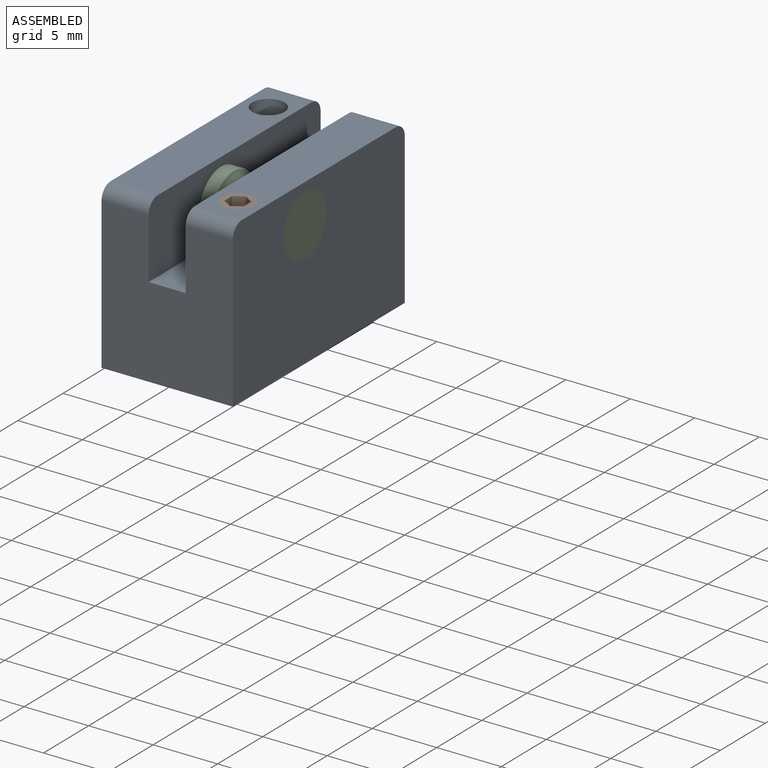
[diagram: assembled view]
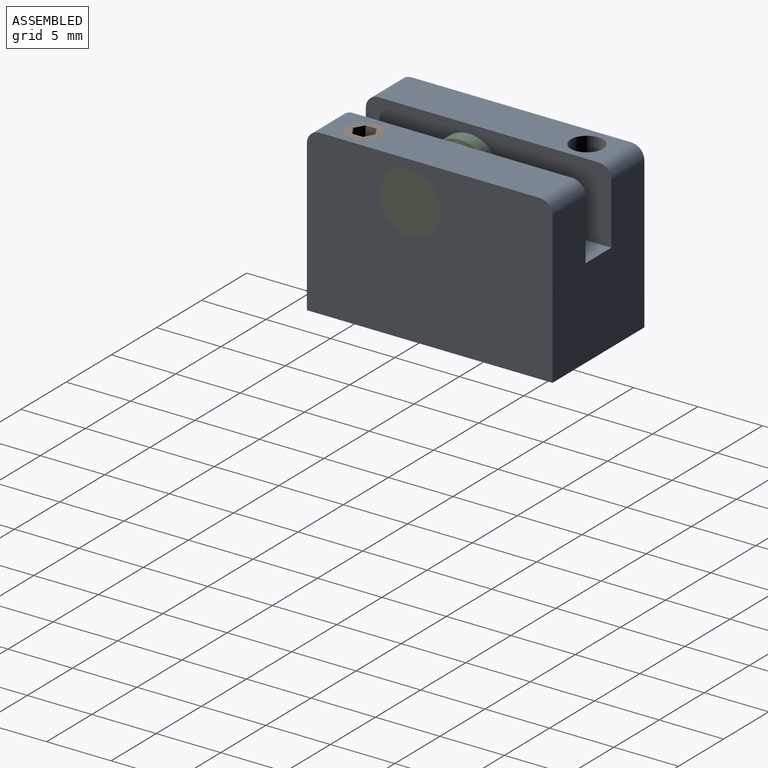
[diagram: assembled view, second angle]
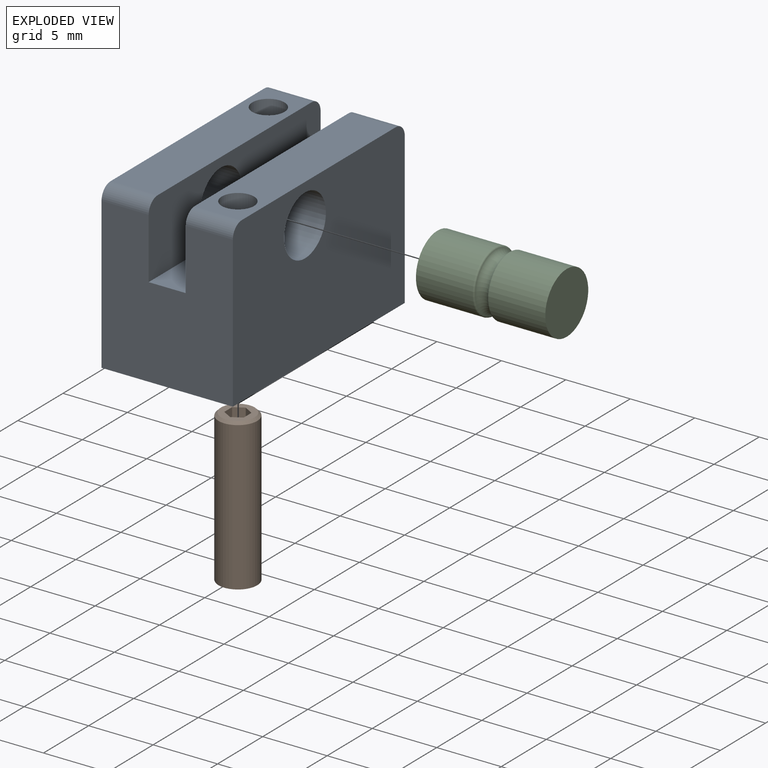
[diagram: exploded view]
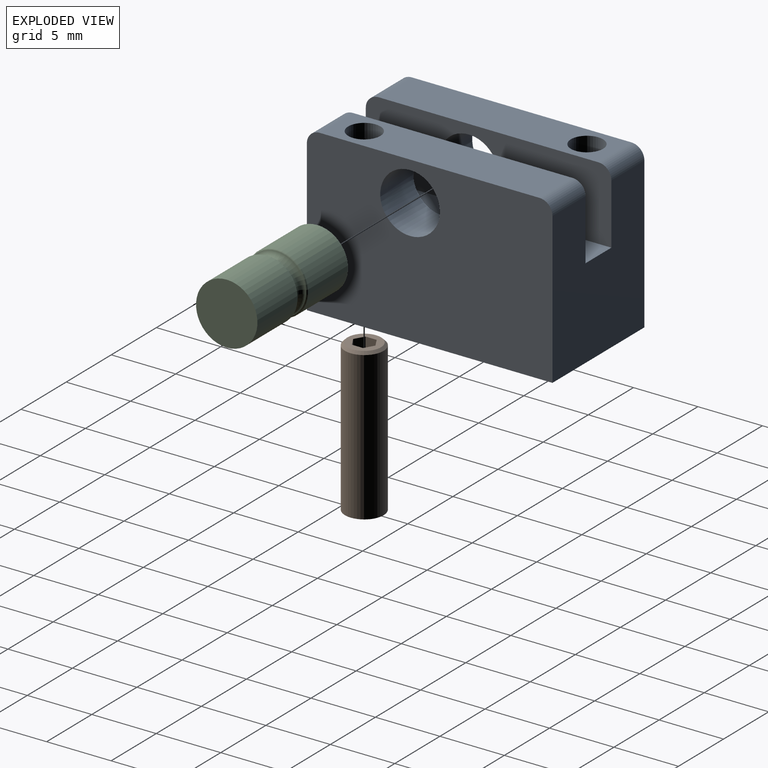
[diagram: exploded view, second angle]
ASSEMBLY  parts=3 mates=2
PART A: 18 faces, bbox 10.2x19.1x12.7 mm
  f0: plane 17.05x3.66mm, normal (0,0,1), area 57.5mm2, adj f4,f8,f10,f11,f15
  f1: plane 11.7x10.19mm, normal (0,1,0), area 105.6mm2, adj f2,f4,f6,f7,f8,f9,f10,f13
  f2: plane 19.05x12.7mm, normal (-1,0,0), area 224.7mm2, adj f1,f3,f5,f6,f12,f13,f17
  f3: plane 11.7x10.19mm, normal (0,-1,0), area 105.6mm2, adj f2,f4,f6,f7,f8,f9,f11,f12
  f4: plane 19.05x12.7mm, normal (1,0,0), area 224.7mm2, adj f0,f1,f3,f6,f10,f11,f16
  f5: plane 17.05x3.66mm, normal (0,0,1), area 57.5mm2, adj f2,f7,f12,f13,f14
  f6: plane 19.05x10.19mm, normal (0,0,-1), area 184.2mm2, adj f1,f2,f3,f4,f14,f15
  f7: plane 19.05x5.72mm, normal (1,0,0), area 91.7mm2, adj f1,f3,f5,f9,f12,f13,f17
  f8: plane 19.05x5.72mm, normal (-1,0,0), area 91.7mm2, adj f0,f1,f3,f9,f10,f11,f16
  f9: plane 19.05x2.87mm, normal (0,0,1), area 54.7mm2, adj f1,f3,f7,f8
  f10: cylinder r=1mm len=3.66mm, axis (1,0,0), area 5.7mm2, adj f0,f1,f4,f8
  f11: cylinder r=1mm len=3.66mm, axis (-1,0,0), area 5.7mm2, adj f0,f3,f4,f8
  f12: cylinder r=1mm len=3.66mm, axis (-1,0,0), area 5.7mm2, adj f2,f3,f5,f7
  f13: cylinder r=1mm len=3.66mm, axis (1,0,0), area 5.7mm2, adj f1,f2,f5,f7
  f14: cylinder r=1.25mm len=12.7mm, axis (0,0,1), area 99.7mm2, adj f5,f6
  f15: cylinder r=1.25mm len=12.7mm, axis (0,0,1), area 99.7mm2, adj f0,f6
  f16: cylinder r=2.31mm len=4.62mm, axis (1,0,0), area 53.1mm2, adj f4,f8
  f17: cylinder r=2.31mm len=4.62mm, axis (1,0,0), area 53.1mm2, adj f2,f7
PART B: 11 faces, bbox 12.3x3.3x3.3 mm
  f0: cone r=1732.05mm half-angle=60deg, axis (-1,0,0), area 2.6mm2, adj f5,f6,f7,f8,f9,f10
  f1: sphere r=4.2mm, area 7.3mm2, adj f2
  f2: cylinder r=1.5mm len=11.52mm, axis (-1,0,0), area 108.6mm2, adj f1,f3
  f3: cone r=1.3mm half-angle=45deg, axis (1,0,0), area 2.5mm2, adj f2,f4
  f4: plane 2.6x2.6mm, normal (-1,0,0), area 3.4mm2, adj f3,f5,f6,f7,f8,f9,f10
  f5: plane 3.27x1.02mm, normal (0,-0.87,-0.5), area 2.6mm2, adj f0,f4,f6,f10
  f6: plane 3.07x0.94mm, normal (0,0,-1), area 2.6mm2, adj f0,f4,f5,f7
  f7: plane 3.27x1.02mm, normal (0,0.87,-0.5), area 2.6mm2, adj f0,f4,f6,f8
  f8: plane 3.27x1.02mm, normal (0,0.87,0.5), area 2.6mm2, adj f0,f4,f7,f9
  f9: plane 3.07x0.94mm, normal (0,0,1), area 2.6mm2, adj f0,f4,f8,f10
  f10: plane 3.27x1.02mm, normal (0,-0.87,0.5), area 2.6mm2, adj f0,f4,f5,f9
PART C: 7 faces, bbox 10x5.2x5.2 mm
  f0: plane 4.76x4.76mm, normal (-1,0,0), area 17.8mm2, adj f4
  f1: plane 4.76x4.76mm, normal (1,0,0), area 17.8mm2, adj f2
  f2: cylinder r=2.38mm len=4.76mm, axis (-1,0,0), area 65.7mm2, adj f1,f5
  f3: torus R=2.38mm, axis (-1,0,0), area 17.6mm2, adj f5,f6
  f4: cylinder r=2.38mm len=4.76mm, axis (-1,0,0), area 65.7mm2, adj f0,f6
  f5: torus R=2.25mm, axis (1,0,0), area 2.6mm2, adj f2,f3
  f6: torus R=2.25mm, axis (1,0,0), area 2.6mm2, adj f3,f4
PLACE A t=(7.44,9.8,-10.06)mm
PLACE B rot(axis=(0,1,0),90deg) t=(10.96,2.31,2.64)mm
PLACE C t=(2.76,7.13,-0.41)mm
MATE fastened A.f16 <-> C.f2  axis (1,0,0) through (12.79,7.13,-0.41)mm
MATE fastened B.f0 <-> A.f15  axis (0,0,1) through (10.96,2.31,2.64)mm
